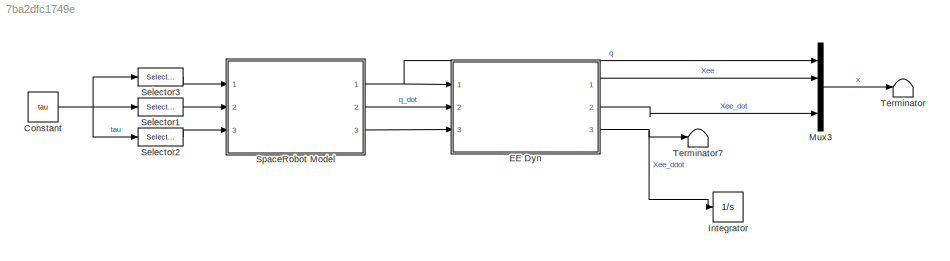
MODEL slx_7ba2dfc1749e
KIND model
CONFIG AbsTol = auto
CONFIG EnableMultiTasking = off
CONFIG FixedStep = auto
CONFIG MaxStep = auto
CONFIG MinStep = auto
CONFIG RelTol = 1e-3
CONFIG SampleTimeConstraint = Unconstrained
CONFIG SolverName = VariableStepAuto
CONFIG StartTime = 0.0
CONFIG StopTime = 5
BLOCK [Constant] Constant
  Value = tau
BLOCK [SubSystem] EE Dyn
  Ports = [3, 3]
  ReferencedSubsystem = EE_Dyn
  RequestExecContextInheritance = off
  spaceRobot = sr
BLOCK [Integrator] Integrator
  InitialCondition = zeros(6, 1)
  Ports = [1, 1]
BLOCK [Mux] Mux3
  DisplayOption = bar
  Ports = [4, 1]
BLOCK [Selector] Selector1
  IndexOptions = Index vector (dialog)
  Indices = [4:6]
  OutputSizes = 1
  Ports = [1, 1]
BLOCK [Selector] Selector2
  IndexOptions = Index vector (dialog)
  Indices = [7:N]
  OutputSizes = 1
  Ports = [1, 1]
BLOCK [Selector] Selector3
  IndexOptions = Index vector (dialog)
  Indices = [1:3]
  OutputSizes = 1
  Ports = [1, 1]
BLOCK [SubSystem] SpaceRobot Model
  Ports = [3, 3]
  ReferencedSubsystem = SpaceRobot_Model
  RequestExecContextInheritance = off
  jointCstr = off
  q_0 = q0
  q_dot_0 = q_dot_0
  spaceRobot = sr
BLOCK [Terminator] Terminator
BLOCK [Terminator] Terminator7
NET Constant:1 -> Selector1:1, Selector2:1, Selector3:1
LINE EE Dyn:1 -> Mux3:2
LINE EE Dyn:2 -> Mux3:4
NET EE Dyn:3 -> Integrator:1, Terminator7:1
LINE Mux3:1 -> Terminator:1
LINE Selector1:1 -> SpaceRobot Model:2
LINE Selector2:1 -> SpaceRobot Model:3
LINE Selector3:1 -> SpaceRobot Model:1
NET SpaceRobot Model:1 -> EE Dyn:1, Mux3:1
LINE SpaceRobot Model:2 -> EE Dyn:2
LINE SpaceRobot Model:3 -> EE Dyn:3
note: NET lines group one-source signal fan-out (src -> all destinations, sorted); 1:1 wires keep LINE
